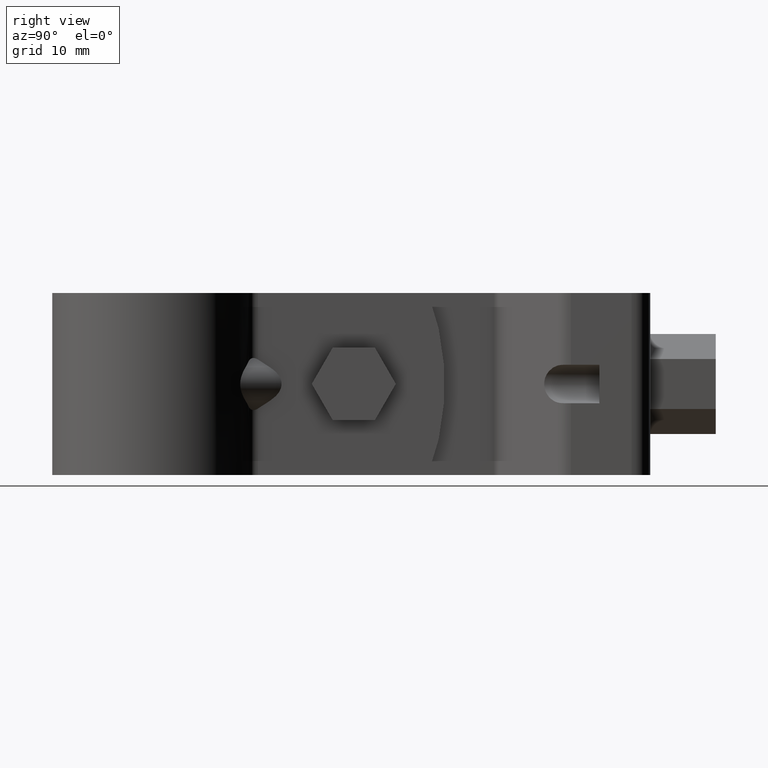
[diagram: clean part render]
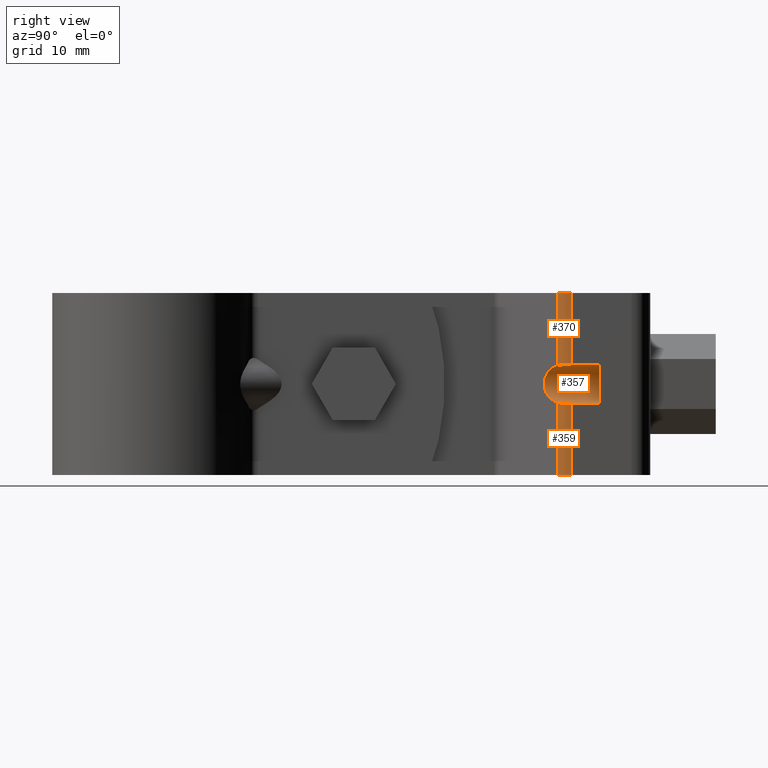
[diagram: same view with one multi-face feature highlighted, each face labeled with its STEP entity id]
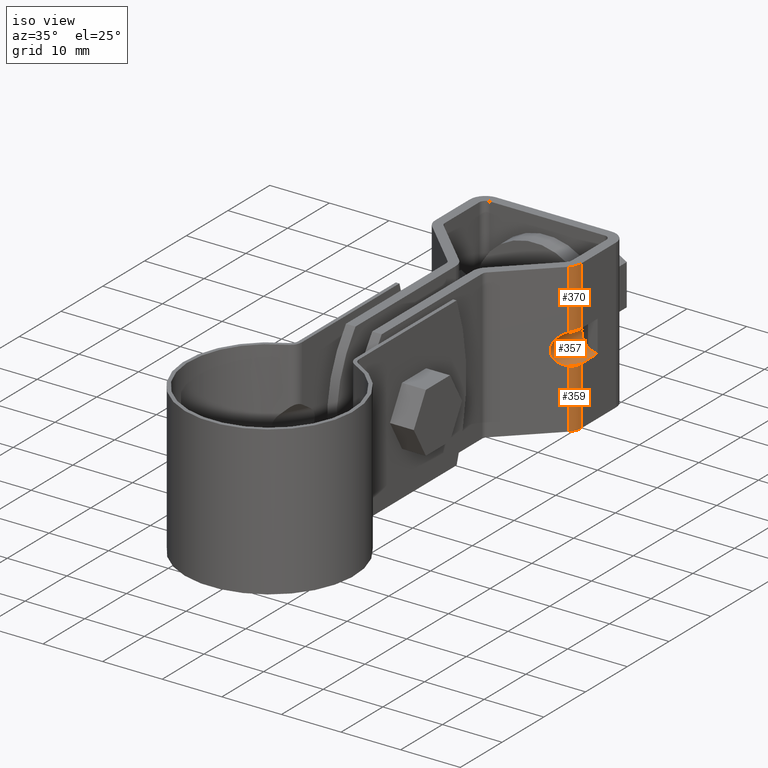
[diagram: same view with one multi-face feature highlighted, each face labeled with its STEP entity id]
A machine part, right view. The highlighted faces form ONE feature: a constant-radius fillet chain: 3 tangent blend faces with common blend radius 2.61667 mm. The faces share edges in the B-rep.
A second angle (iso view) of the same feature is appended — it is thin or edge-on in the first view.
Their STEP definitions:
[1] entity #357 (Cylinder):
#357 = ADVANCED_FACE( '', ( #588 ), #589, .F. );
#588 = FACE_OUTER_BOUND( '', #860, .T. );
#589 = CYLINDRICAL_SURFACE( '', #861, 2.64999999999997 );
#860 = EDGE_LOOP( '', ( #1667, #1668, #1669, #1670, #1671, #1672, #1673, #1674 ) );
#861 = AXIS2_PLACEMENT_3D( '', #1675, #1676, #1677 );
#1667 = ORIENTED_EDGE( '', *, *, #2190, .T. );
#1668 = ORIENTED_EDGE( '', *, *, #2191, .T. );
#1669 = ORIENTED_EDGE( '', *, *, #2192, .T. );
#1670 = ORIENTED_EDGE( '', *, *, #2193, .F. );
#1671 = ORIENTED_EDGE( '', *, *, #2188, .F. );
#1672 = ORIENTED_EDGE( '', *, *, #2194, .F. );
#1673 = ORIENTED_EDGE( '', *, *, #2195, .F. );
#1674 = ORIENTED_EDGE( '', *, *, #2196, .T. );
#1675 = CARTESIAN_POINT( '', ( 12.2500000034881, 51.0839384470663, 1.24939898704657E-006 ) );
#1676 = DIRECTION( '', ( -1.39877502405819E-011, -1.00000000000000, -9.98350074832280E-009 ) );
#1677 = DIRECTION( '', ( -1.87909263230408E-011, 9.98350074832306E-009, -1.00000000000000 ) );
#2188 = EDGE_CURVE( '', #2683, #2685, #2686, .T. );
#2190 = EDGE_CURVE( '', #2688, #2689, #2690, .T. );
#2191 = EDGE_CURVE( '', #2689, #2691, #2692, .T. );
#2192 = EDGE_CURVE( '', #2691, #2693, #2694, .T. );
#2193 = EDGE_CURVE( '', #2685, #2693, #2695, .T. );
#2194 = EDGE_CURVE( '', #2696, #2683, #2697, .T. );
#2195 = EDGE_CURVE( '', #2698, #2696, #2699, .T. );
#2196 = EDGE_CURVE( '', #2698, #2688, #2700, .T. );
#2683 = VERTEX_POINT( '', #3512 );
#2685 = VERTEX_POINT( '', #3515 );
#2686 = CIRCLE( '', #3516, 2.64999999999997 );
#2688 = VERTEX_POINT( '', #3519 );
#2689 = VERTEX_POINT( '', #3520 );
#2690 = ELLIPSE( '', #3521, 3.70224472166266, 2.64999999999997 );
#2691 = VERTEX_POINT( '', #3522 );
#2692 = B_SPLINE_CURVE_WITH_KNOTS( '', 3, ( #3523, #3524, #3525, #3526, #3527, #3528, #3529, #3530 ), .UNSPECIFIED., .F., .F., ( 4, 2, 2, 4 ), ( 1.73472347597684E-018, 0.000516787748161299, 0.00103357549632260, 0.00206715099264519 ), .UNSPECIFIED. );
#2693 = VERTEX_POINT( '', #3531 );
#2694 = LINE( '', #3532, #3533 );
#2695 = CIRCLE( '', #3534, 2.64999999999997 );
#2696 = VERTEX_POINT( '', #3535 );
#2697 = CIRCLE( '', #3536, 2.64999999999997 );
#2698 = VERTEX_POINT( '', #3537 );
#2699 = LINE( '', #3538, #3539 );
#2700 = B_SPLINE_CURVE_WITH_KNOTS( '', 3, ( #3540, #3541, #3542, #3543, #3544, #3545, #3546, #3547, #3548, #3549 ), .UNSPECIFIED., .F., .F., ( 4, 2, 2, 2, 4 ), ( 0.000000000000000, 0.000517346174284564, 0.00103469234856913, 0.00155203852285369, 0.00206938469713826 ), .UNSPECIFIED. );
#3512 = CARTESIAN_POINT( '', ( 10.6500000036677, 61.0839384259989, 2.11246436669178 ) );
#3515 = CARTESIAN_POINT( '', ( 10.6500000035884, 61.0839384681784, -2.11246166816374 ) );
#3516 = AXIS2_PLACEMENT_3D( '', #4101, #4102, #4103 );
#3519 = CARTESIAN_POINT( '', ( 11.4656419759742, 55.3187111131727, 2.53126233798980 ) );
#3520 = CARTESIAN_POINT( '', ( 11.4656419758792, 55.3187111637143, -2.53125975460668 ) );
#3521 = AXIS2_PLACEMENT_3D( '', #4105, #4106, #4107 );
#3522 = CARTESIAN_POINT( '', ( 12.2500000035237, 57.1797442726369, -2.64999868974351 ) );
#3523 = CARTESIAN_POINT( '', ( 11.4656419758792, 55.3187111637143, -2.53125975460669 ) );
#3524 = CARTESIAN_POINT( '', ( 11.5880007629319, 55.4380855849629, -2.56917488548717 ) );
#3525 = CARTESIAN_POINT( '', ( 11.6979909760837, 55.5687845505759, -2.59373737562609 ) );
#3526 = CARTESIAN_POINT( '', ( 11.8919853035491, 55.8519791717760, -2.62754884109341 ) );
#3527 = CARTESIAN_POINT( '', ( 11.9765770492534, 56.0063043703994, -2.63672396933639 ) );
#3528 = CARTESIAN_POINT( '', ( 12.1789956060258, 56.4841373023942, -2.65250305603471 ) );
#3529 = CARTESIAN_POINT( '', ( 12.2500000035188, 56.8302024305897, -2.64999869323316 ) );
#3530 = CARTESIAN_POINT( '', ( 12.2500000035237, 57.1797442726369, -2.64999868974351 ) );
#3531 = CARTESIAN_POINT( '', ( 12.2500000035783, 61.0839384735225, -2.64999865076598 ) );
#3532 = CARTESIAN_POINT( '', ( 12.2500000034384, 51.0839384735226, -2.64999875060099 ) );
#3533 = VECTOR( '', #4108, 1000.00000000000 );
#3534 = AXIS2_PLACEMENT_3D( '', #4109, #4110, #4111 );
#3535 = CARTESIAN_POINT( '', ( 12.2500000036778, 61.0839384206100, 2.65000134923396 ) );
#3536 = AXIS2_PLACEMENT_3D( '', #4112, #4113, #4114 );
#3537 = CARTESIAN_POINT( '', ( 12.2500000036232, 57.1797442197243, 2.65000131025643 ) );
#3538 = CARTESIAN_POINT( '', ( 12.2500000035379, 51.0839384206100, 2.65000124939896 ) );
#3539 = VECTOR( '', #4115, 1000.00000000000 );
#3540 = CARTESIAN_POINT( '', ( 12.2500000036232, 57.1797442197243, 2.65000131025643 ) );
#3541 = CARTESIAN_POINT( '', ( 12.2500000036207, 57.0048541554761, 2.65000130851042 ) );
#3542 = CARTESIAN_POINT( '', ( 12.2325330390266, 56.8329117475692, 2.65016500279893 ) );
#3543 = CARTESIAN_POINT( '', ( 12.1640563560611, 56.4946965575753, 2.64882866659661 ) );
#3544 = CARTESIAN_POINT( '', ( 12.1121297153142, 56.3265657093095, 2.64727725460602 ) );
#3545 = CARTESIAN_POINT( '', ( 11.9772119396914, 56.0075322541823, 2.63679193476717 ) );
#3546 = CARTESIAN_POINT( '', ( 11.8947254740653, 55.8565210349206, 2.62792908053543 ) );
#3547 = CARTESIAN_POINT( '', ( 11.7003962072487, 55.5717680254410, 2.59425650401387 ) );
#3548 = CARTESIAN_POINT( '', ( 11.5880224334554, 55.4381066755432, 2.56918418623187 ) );
#3549 = CARTESIAN_POINT( '', ( 11.4656419759742, 55.3187111131727, 2.53126233798980 ) );
#4101 = CARTESIAN_POINT( '', ( 12.2500000036280, 61.0839384470663, 1.34923398842357E-006 ) );
#4102 = DIRECTION( '', ( -1.39877502405819E-011, -1.00000000000000, -9.98350074832280E-009 ) );
#4103 = DIRECTION( '', ( -1.87693241061702E-011, 9.98350074832307E-009, -1.00000000000000 ) );
#4105 = CARTESIAN_POINT( '', ( 12.2500000035581, 56.0839384470664, 1.29931648773507E-006 ) );
#4106 = DIRECTION( '', ( 0.698323835520487, -0.715781964528275, -7.15911726152397E-009 ) );
#4107 = DIRECTION( '', ( 0.715781964528275, 0.698323835520487, 6.95828136377368E-009 ) );
#4108 = DIRECTION( '', ( 1.39877502405819E-011, 1.00000000000000, 9.98350074832280E-009 ) );
#4109 = CARTESIAN_POINT( '', ( 12.2500000036280, 61.0839384470663, 1.34923398842357E-006 ) );
#4110 = DIRECTION( '', ( -1.39877502405819E-011, -1.00000000000000, -9.98350074832280E-009 ) );
#4111 = DIRECTION( '', ( -1.87693241061702E-011, 9.98350074832307E-009, -1.00000000000000 ) );
#4112 = CARTESIAN_POINT( '', ( 12.2500000036280, 61.0839384470663, 1.34923398842357E-006 ) );
#4113 = DIRECTION( '', ( -1.39877502405819E-011, -1.00000000000000, -9.98350074832280E-009 ) );
#4114 = DIRECTION( '', ( -1.87693241061702E-011, 9.98350074832307E-009, -1.00000000000000 ) );
#4115 = DIRECTION( '', ( 1.39877502405819E-011, 1.00000000000000, 9.98350074832280E-009 ) );
[2] entity #370 (Cylinder):
#370 = ADVANCED_FACE( '', ( #617 ), #618, .T. );
#617 = FACE_OUTER_BOUND( '', #889, .T. );
#618 = CYLINDRICAL_SURFACE( '', #890, 2.59999999999999 );
#889 = EDGE_LOOP( '', ( #1798, #1799, #1800, #1801 ) );
#890 = AXIS2_PLACEMENT_3D( '', #1802, #1803, #1804 );
#1798 = ORIENTED_EDGE( '', *, *, #2224, .F. );
#1799 = ORIENTED_EDGE( '', *, *, #2196, .F. );
#1800 = ORIENTED_EDGE( '', *, *, #2223, .T. );
#1801 = ORIENTED_EDGE( '', *, *, #2216, .F. );
#1802 = CARTESIAN_POINT( '', ( 9.65000000333882, 57.1797443710108, -12.4999986896947 ) );
#1803 = DIRECTION( '', ( -1.87698704392248E-011, 9.98350074832307E-009, -1.00000000000000 ) );
#1804 = DIRECTION( '', ( 1.39877502405819E-011, 1.00000000000000, 9.98350074832280E-009 ) );
#2196 = EDGE_CURVE( '', #2698, #2688, #2700, .T. );
#2216 = EDGE_CURVE( '', #2725, #2727, #2728, .T. );
#2223 = EDGE_CURVE( '', #2698, #2727, #2738, .T. );
#2224 = EDGE_CURVE( '', #2688, #2725, #2739, .T. );
#2688 = VERTEX_POINT( '', #3519 );
#2698 = VERTEX_POINT( '', #3537 );
#2700 = B_SPLINE_CURVE_WITH_KNOTS( '', 3, ( #3540, #3541, #3542, #3543, #3544, #3545, #3546, #3547, #3548, #3549 ), .UNSPECIFIED., .F., .F., ( 4, 2, 2, 2, 4 ), ( 0.000000000000000, 0.000517346174284564, 0.00103469234856913, 0.00155203852285369, 0.00206938469713826 ), .UNSPECIFIED. );
#2725 = VERTEX_POINT( '', #3588 );
#2727 = VERTEX_POINT( '', #3591 );
#2728 = CIRCLE( '', #3592, 2.59999999999999 );
#2738 = LINE( '', #3605, #3606 );
#2739 = LINE( '', #3607, #3608 );
#3519 = CARTESIAN_POINT( '', ( 11.4656419759742, 55.3187111131727, 2.53126233798980 ) );
#3537 = CARTESIAN_POINT( '', ( 12.2500000036232, 57.1797442197243, 2.65000131025643 ) );
#3540 = CARTESIAN_POINT( '', ( 12.2500000036232, 57.1797442197243, 2.65000131025643 ) );
#3541 = CARTESIAN_POINT( '', ( 12.2500000036207, 57.0048541554761, 2.65000130851042 ) );
#3542 = CARTESIAN_POINT( '', ( 12.2325330390266, 56.8329117475692, 2.65016500279893 ) );
#3543 = CARTESIAN_POINT( '', ( 12.1640563560611, 56.4946965575753, 2.64882866659661 ) );
#3544 = CARTESIAN_POINT( '', ( 12.1121297153142, 56.3265657093095, 2.64727725460602 ) );
#3545 = CARTESIAN_POINT( '', ( 11.9772119396914, 56.0075322541823, 2.63679193476717 ) );
#3546 = CARTESIAN_POINT( '', ( 11.8947254740653, 55.8565210349206, 2.62792908053543 ) );
#3547 = CARTESIAN_POINT( '', ( 11.7003962072487, 55.5717680254410, 2.59425650401387 ) );
#3548 = CARTESIAN_POINT( '', ( 11.5880224334554, 55.4381066755432, 2.56918418623187 ) );
#3549 = CARTESIAN_POINT( '', ( 11.4656419759742, 55.3187111131727, 2.53126233798980 ) );
#3588 = CARTESIAN_POINT( '', ( 11.4656419761613, 55.3187110136498, 12.5000012916916 ) );
#3591 = CARTESIAN_POINT( '', ( 12.2500000038081, 57.1797441213869, 12.5000013102565 ) );
#3592 = AXIS2_PLACEMENT_3D( '', #4143, #4144, #4145 );
#3605 = CARTESIAN_POINT( '', ( 12.2500000033388, 57.1797443709744, -12.4999986897435 ) );
#3606 = VECTOR( '', #4158, 1000.00000000000 );
#3607 = CARTESIAN_POINT( '', ( 11.4656419756921, 55.3187112632373, -12.4999987083084 ) );
#3608 = VECTOR( '', #4159, 1000.00000000000 );
#4143 = CARTESIAN_POINT( '', ( 9.65000000380807, 57.1797441214233, 12.5000013103053 ) );
#4144 = DIRECTION( '', ( 1.87698704392248E-011, -9.98350074832307E-009, 1.00000000000000 ) );
#4145 = DIRECTION( '', ( 0.698323835520490, -0.715781964528272, -7.15911722642150E-009 ) );
#4158 = DIRECTION( '', ( 1.87698704392248E-011, -9.98350074832307E-009, 1.00000000000000 ) );
#4159 = DIRECTION( '', ( 1.87698704392248E-011, -9.98350074832307E-009, 1.00000000000000 ) );
[3] entity #359 (Cylinder):
#359 = ADVANCED_FACE( '', ( #592 ), #593, .T. );
#592 = FACE_OUTER_BOUND( '', #864, .T. );
#593 = CYLINDRICAL_SURFACE( '', #865, 2.59999999999999 );
#864 = EDGE_LOOP( '', ( #1685, #1686, #1687, #1688 ) );
#865 = AXIS2_PLACEMENT_3D( '', #1689, #1690, #1691 );
#1685 = ORIENTED_EDGE( '', *, *, #2199, .T. );
#1686 = ORIENTED_EDGE( '', *, *, #2191, .F. );
#1687 = ORIENTED_EDGE( '', *, *, #2200, .F. );
#1688 = ORIENTED_EDGE( '', *, *, #2118, .T. );
#1689 = CARTESIAN_POINT( '', ( 9.65000000333882, 57.1797443710108, -12.4999986896947 ) );
#1690 = DIRECTION( '', ( -1.87698704392248E-011, 9.98350074832307E-009, -1.00000000000000 ) );
#1691 = DIRECTION( '', ( 1.39877502405819E-011, 1.00000000000000, 9.98350074832280E-009 ) );
#2118 = EDGE_CURVE( '', #2568, #2566, #2569, .T. );
#2191 = EDGE_CURVE( '', #2689, #2691, #2692, .T. );
#2199 = EDGE_CURVE( '', #2566, #2691, #2703, .T. );
#2200 = EDGE_CURVE( '', #2568, #2689, #2704, .T. );
#2566 = VERTEX_POINT( '', #3318 );
#2568 = VERTEX_POINT( '', #3321 );
#2569 = CIRCLE( '', #3322, 2.59999999999999 );
#2689 = VERTEX_POINT( '', #3520 );
#2691 = VERTEX_POINT( '', #3522 );
#2692 = B_SPLINE_CURVE_WITH_KNOTS( '', 3, ( #3523, #3524, #3525, #3526, #3527, #3528, #3529, #3530 ), .UNSPECIFIED., .F., .F., ( 4, 2, 2, 4 ), ( 1.73472347597684E-018, 0.000516787748161299, 0.00103357549632260, 0.00206715099264519 ), .UNSPECIFIED. );
#2703 = LINE( '', #3554, #3555 );
#2704 = LINE( '', #3556, #3557 );
#3318 = CARTESIAN_POINT( '', ( 12.2500000033388, 57.1797443709744, -12.4999986897435 ) );
#3321 = CARTESIAN_POINT( '', ( 11.4656419756921, 55.3187112632373, -12.4999987083084 ) );
#3322 = AXIS2_PLACEMENT_3D( '', #3991, #3992, #3993 );
#3520 = CARTESIAN_POINT( '', ( 11.4656419758792, 55.3187111637143, -2.53125975460668 ) );
#3522 = CARTESIAN_POINT( '', ( 12.2500000035237, 57.1797442726369, -2.64999868974351 ) );
#3523 = CARTESIAN_POINT( '', ( 11.4656419758792, 55.3187111637143, -2.53125975460669 ) );
#3524 = CARTESIAN_POINT( '', ( 11.5880007629319, 55.4380855849629, -2.56917488548717 ) );
#3525 = CARTESIAN_POINT( '', ( 11.6979909760837, 55.5687845505759, -2.59373737562609 ) );
#3526 = CARTESIAN_POINT( '', ( 11.8919853035491, 55.8519791717760, -2.62754884109341 ) );
#3527 = CARTESIAN_POINT( '', ( 11.9765770492534, 56.0063043703994, -2.63672396933639 ) );
#3528 = CARTESIAN_POINT( '', ( 12.1789956060258, 56.4841373023942, -2.65250305603471 ) );
#3529 = CARTESIAN_POINT( '', ( 12.2500000035188, 56.8302024305897, -2.64999869323316 ) );
#3530 = CARTESIAN_POINT( '', ( 12.2500000035237, 57.1797442726369, -2.64999868974351 ) );
#3554 = CARTESIAN_POINT( '', ( 12.2500000033388, 57.1797443709744, -12.4999986897435 ) );
#3555 = VECTOR( '', #4118, 1000.00000000000 );
#3556 = CARTESIAN_POINT( '', ( 11.4656419756921, 55.3187112632373, -12.4999987083084 ) );
#3557 = VECTOR( '', #4119, 1000.00000000000 );
#3991 = CARTESIAN_POINT( '', ( 9.65000000333882, 57.1797443710108, -12.4999986896947 ) );
#3992 = DIRECTION( '', ( 1.87698704392248E-011, -9.98350074832307E-009, 1.00000000000000 ) );
#3993 = DIRECTION( '', ( 0.698323835520490, -0.715781964528272, -7.15911722642150E-009 ) );
#4118 = DIRECTION( '', ( 1.87698704392248E-011, -9.98350074832307E-009, 1.00000000000000 ) );
#4119 = DIRECTION( '', ( 1.87698704392248E-011, -9.98350074832307E-009, 1.00000000000000 ) );